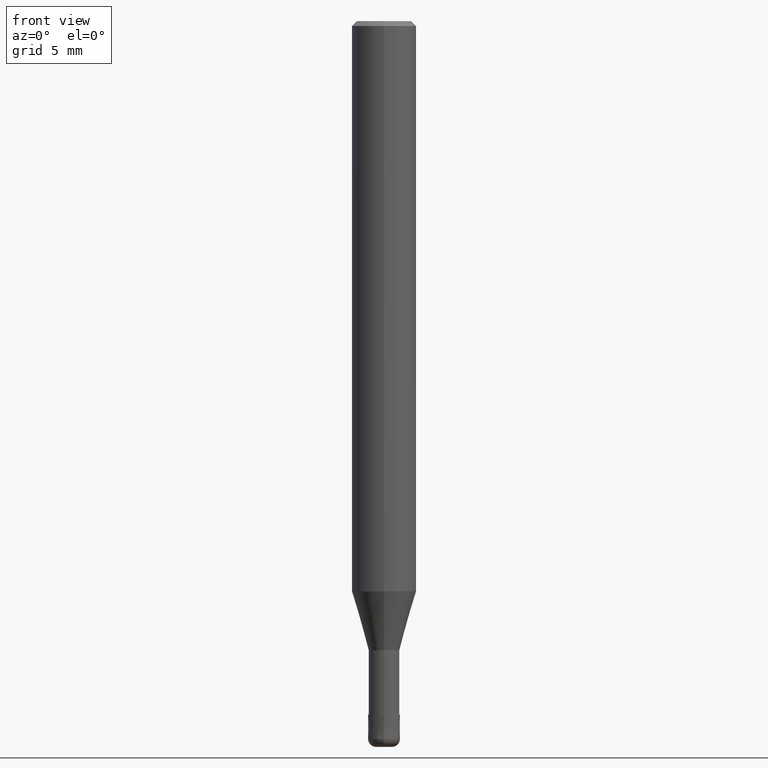
[diagram: clean part render]
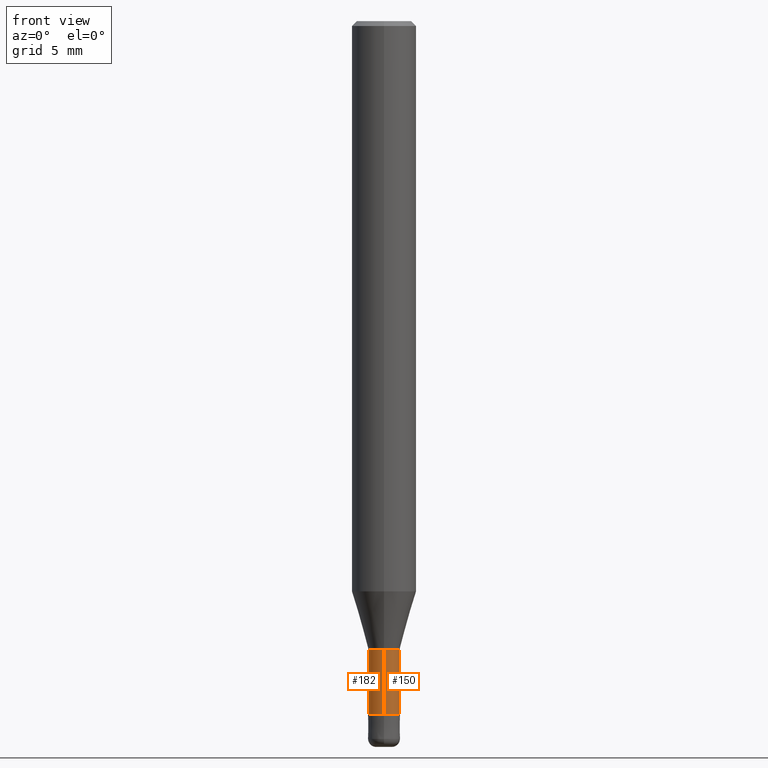
[diagram: same view with one multi-face feature highlighted, each face labeled with its STEP entity id]
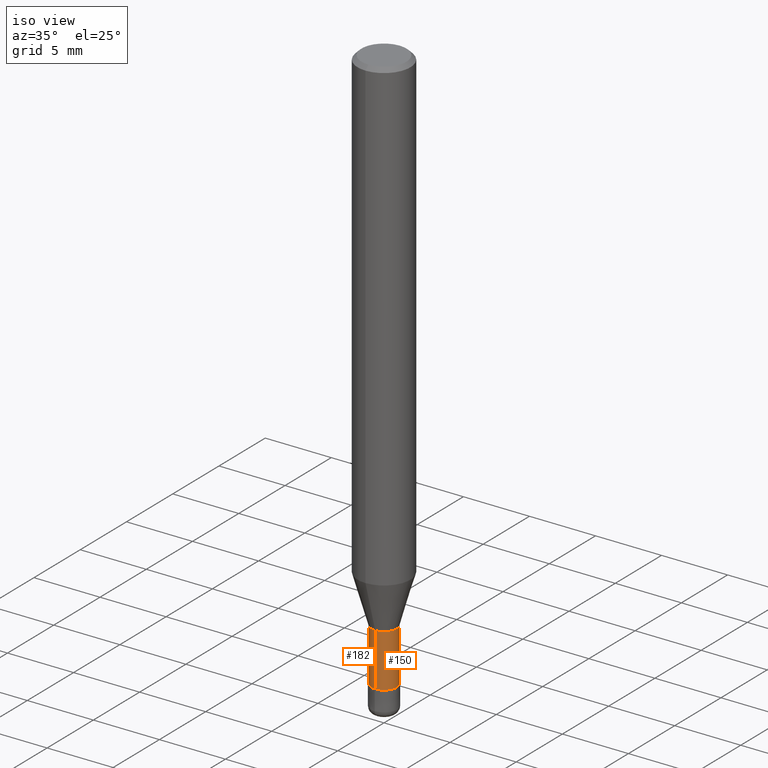
[diagram: same view with one multi-face feature highlighted, each face labeled with its STEP entity id]
A machine part, front view. The highlighted faces form ONE feature: a constant-radius fillet chain: 2 tangent blend faces with common blend radius 0.9549 mm. The faces share edges in the B-rep.
A second angle (iso view) of the same feature is appended — it is thin or edge-on in the first view.
Their STEP definitions:
[1] entity #150 (Cylinder):
#122=VERTEX_POINT('',#277);
#124=VERTEX_POINT('',#279);
#148=EDGE_CURVE('',#122,#174,#307,.T.);
#150=ADVANCED_FACE('',(#309),#310,.T.);
#162=EDGE_CURVE('',#166,#174,#323,.T.);
#166=VERTEX_POINT('',#327);
#174=VERTEX_POINT('',#337);
#184=EDGE_CURVE('',#124,#122,#349,.T.);
#204=EDGE_CURVE('',#166,#124,#370,.T.);
#277=CARTESIAN_POINT('',(1.16943783758268E-016,-0.95495,-43.0));
#279=CARTESIAN_POINT('',(0.0,0.95495,-43.0));
#307=LINE('',#484,#485);
#309=FACE_OUTER_BOUND('',#487,.T.);
#310=CYLINDRICAL_SURFACE('',#488,0.95495);
#323=CIRCLE('',#505,0.95495);
#327=CARTESIAN_POINT('',(0.0,0.95495,-39.0));
#337=CARTESIAN_POINT('',(1.16943783758268E-016,-0.95495,-39.0));
#349=CIRCLE('',#535,0.95495);
#370=LINE('',#559,#560);
#484=CARTESIAN_POINT('',(1.16943783758268E-016,-0.95495,-41.0));
#485=VECTOR('',#676,1.0);
#487=EDGE_LOOP('',(#678,#679,#680,#681));
#488=AXIS2_PLACEMENT_3D('',#682,#683,#684);
#505=AXIS2_PLACEMENT_3D('',#701,#702,#703);
#535=AXIS2_PLACEMENT_3D('',#738,#739,#740);
#559=CARTESIAN_POINT('',(-1.16943783758268E-016,0.95495,-41.0));
#560=VECTOR('',#755,1.0);
#676=DIRECTION('',(-0.0,-0.0,1.0));
#678=ORIENTED_EDGE('',*,*,#204,.F.);
#679=ORIENTED_EDGE('',*,*,#162,.T.);
#680=ORIENTED_EDGE('',*,*,#148,.F.);
#681=ORIENTED_EDGE('',*,*,#184,.F.);
#682=CARTESIAN_POINT('',(0.0,0.0,-41.0));
#683=DIRECTION('',(-0.0,-0.0,1.0));
#684=DIRECTION('',(0.0,1.0,0.0));
#701=CARTESIAN_POINT('',(0.0,0.0,-39.0));
#702=DIRECTION('',(0.0,0.0,-1.0));
#703=DIRECTION('',(0.0,1.0,0.0));
#738=CARTESIAN_POINT('',(0.0,0.0,-43.0));
#739=DIRECTION('',(0.0,0.0,-1.0));
#740=DIRECTION('',(0.0,1.0,0.0));
#755=DIRECTION('',(0.0,0.0,-1.0));
[2] entity #182 (Cylinder):
#122=VERTEX_POINT('',#277);
#124=VERTEX_POINT('',#279);
#148=EDGE_CURVE('',#122,#174,#307,.T.);
#166=VERTEX_POINT('',#327);
#174=VERTEX_POINT('',#337);
#182=ADVANCED_FACE('',(#346),#347,.T.);
#192=EDGE_CURVE('',#122,#124,#357,.T.);
#204=EDGE_CURVE('',#166,#124,#370,.T.);
#206=EDGE_CURVE('',#174,#166,#372,.T.);
#277=CARTESIAN_POINT('',(1.16943783758268E-016,-0.95495,-43.0));
#279=CARTESIAN_POINT('',(0.0,0.95495,-43.0));
#307=LINE('',#484,#485);
#327=CARTESIAN_POINT('',(0.0,0.95495,-39.0));
#337=CARTESIAN_POINT('',(1.16943783758268E-016,-0.95495,-39.0));
#346=FACE_OUTER_BOUND('',#531,.T.);
#347=CYLINDRICAL_SURFACE('',#532,0.95495);
#357=CIRCLE('',#545,0.95495);
#370=LINE('',#559,#560);
#372=CIRCLE('',#563,0.95495);
#484=CARTESIAN_POINT('',(1.16943783758268E-016,-0.95495,-41.0));
#485=VECTOR('',#676,1.0);
#531=EDGE_LOOP('',(#731,#732,#733,#734));
#532=AXIS2_PLACEMENT_3D('',#735,#736,#737);
#545=AXIS2_PLACEMENT_3D('',#744,#745,#746);
#559=CARTESIAN_POINT('',(-1.16943783758268E-016,0.95495,-41.0));
#560=VECTOR('',#755,1.0);
#563=AXIS2_PLACEMENT_3D('',#756,#757,#758);
#676=DIRECTION('',(-0.0,-0.0,1.0));
#731=ORIENTED_EDGE('',*,*,#204,.T.);
#732=ORIENTED_EDGE('',*,*,#192,.F.);
#733=ORIENTED_EDGE('',*,*,#148,.T.);
#734=ORIENTED_EDGE('',*,*,#206,.T.);
#735=CARTESIAN_POINT('',(0.0,0.0,-41.0));
#736=DIRECTION('',(-0.0,-0.0,1.0));
#737=DIRECTION('',(0.0,1.0,0.0));
#744=CARTESIAN_POINT('',(0.0,0.0,-43.0));
#745=DIRECTION('',(0.0,0.0,-1.0));
#746=DIRECTION('',(0.0,1.0,0.0));
#755=DIRECTION('',(0.0,0.0,-1.0));
#756=CARTESIAN_POINT('',(0.0,0.0,-39.0));
#757=DIRECTION('',(0.0,0.0,-1.0));
#758=DIRECTION('',(0.0,1.0,0.0));